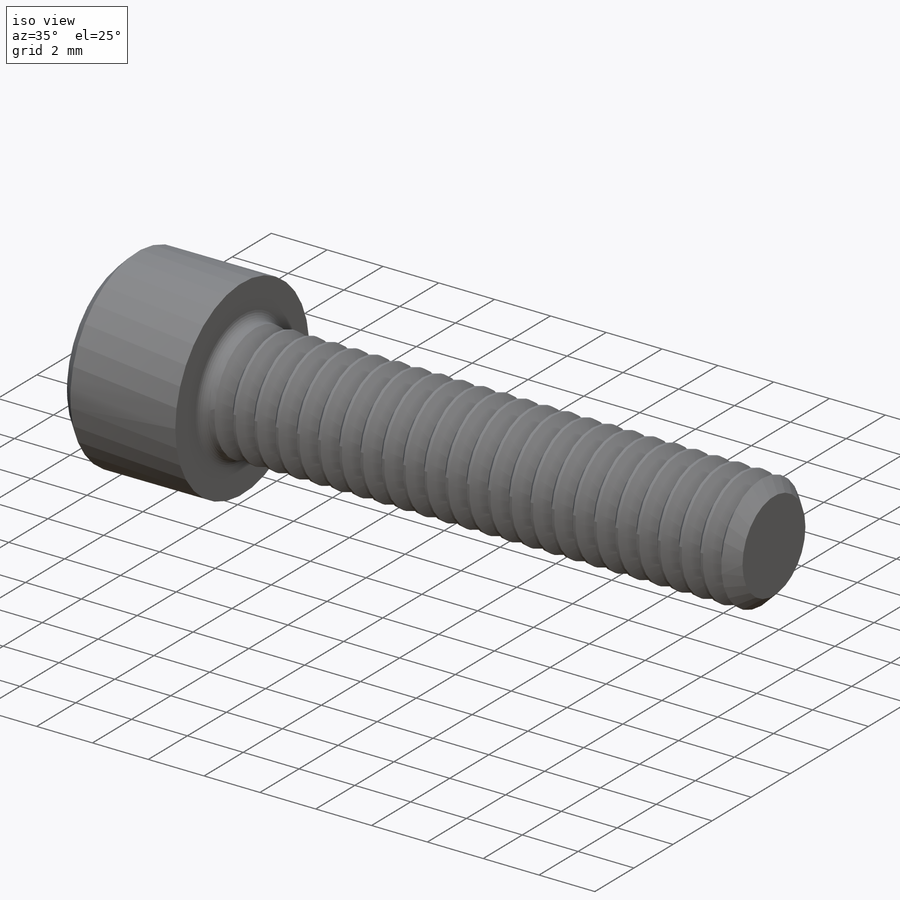
[diagram: iso view]
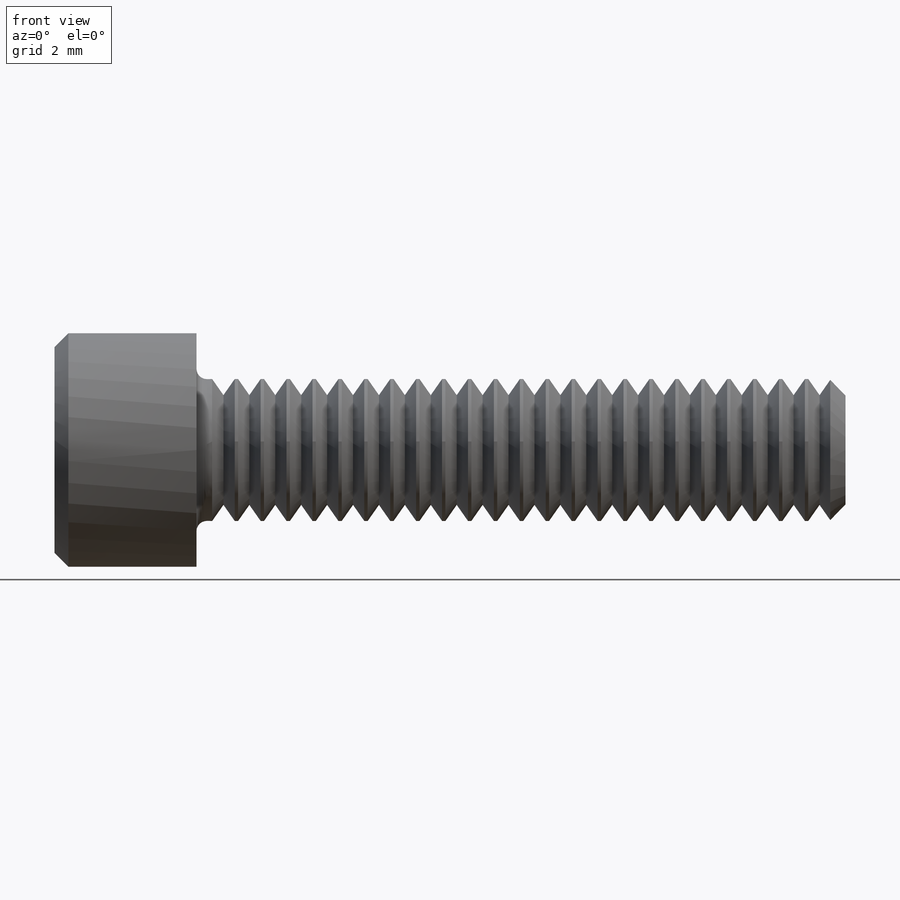
[diagram: front view]
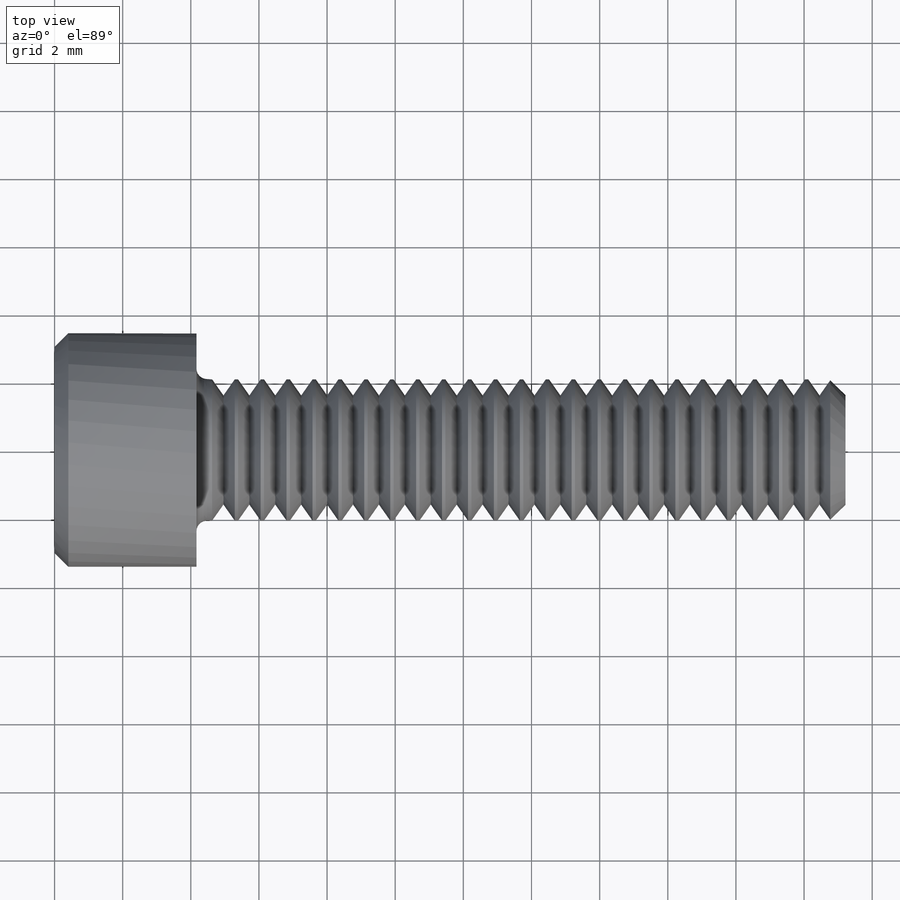
[diagram: top view]
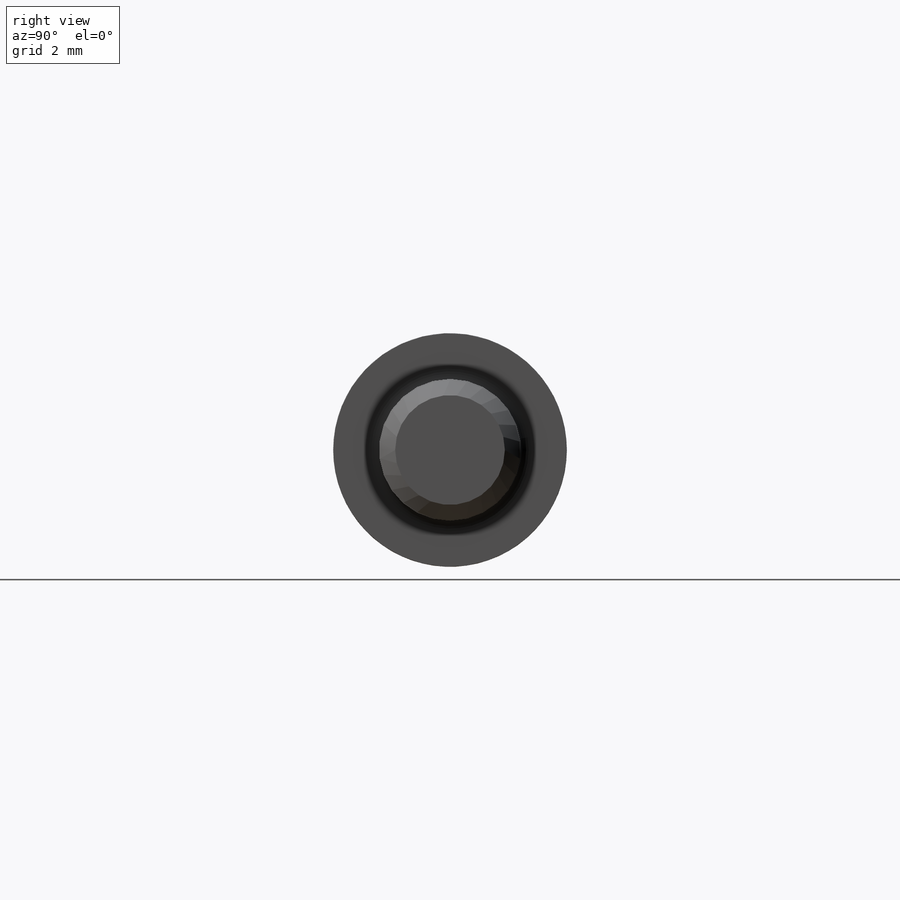
[diagram: right view]
SOLIDWORKS PART (.sldprt)
format: sldprt  version: not decoded by parser v0  size: 970,240 bytes
history: native  units: mm
features: sketch x6, plane x3, pattern_circular x3, cut_revolve x2, material x1, revolve x1, thread x1, fillet x1, cut_extrude x1, hole x1, pattern_linear x1 (+8 scaffold rows collapsed)
feature tree (29):
  scaffold x8  (default folders/planes/origin — collapsed)
  material  "Material <not specified>"
  plane  "Plane1"
  plane  "Plane2"
  plane  "Plane3"
  sketch  "BodySke"  dims[c1.Head_fillet_rad=1.016mm c1.D1=19.05mm c1.Diameter=25.4mm c1.D3=50.8mm c1.D4=22.225mm c2.D4=45.0deg c2.D5=22.225mm c2.Head_ht=4.1656mm c2.Length=19.05mm c2.D8=9.525mm c3.D8=45.0deg c3.D1=9.525mm c4.D8=9.525mm c5.D8=45.0deg c5.D1=73.025mm c6.D1=45.0deg c7.D1=9.525mm c8.D1=45.0deg c8.D4=22.225mm c9.D4=45.0deg c9.Thread_min=12.7mm c10.D4=9.525mm c10.Body_ch_ang=45.0deg c10.D8=22.225mm c11.D8=45.0deg c11.D5=22.225mm c12.D5=45.0deg c13.D5=~4.490128mm c14.D5=45.0deg c14.Head_dia=50.8mm c15.D5=~8.980256mm c15.Head_ch_ang=45.0deg c15.Head_side_ht=3.7592mm c15.D9=19.05mm c15.Diameter=4.1656mm c15.Head_dia=6.858mm c15.Minor_dia=~3.22072mm c15.Advance=~0.79248mm c15.Thread_nom=19.05mm c15.Thread_lim=~74.083342mm c15.Thread_length=38.1mm]
  revolve  "Base-Revolve"  [1 undecoded]
  thread  "ThreadCosmetic"  Diameter=18.25752mm Thread_length=18.25752mm Thread_minor=3.22072mm  [1 undecoded]
  fillet  "Fillet1"  Radius=0.3048mm
  sketch  "Sketch2"  dims[c1.D1=1.778mm c1.D2=25.4mm c2.D2=60.0deg c2.Wall_thickness=2.2098mm]
  cut_revolve  "Hex-PreBroach"  Angle=360deg
  sketch  "Sketch3"  dims[c1.D1=1.778mm c1.D2=1.778mm c1.Hex_size=3.556mm c1.D4=~14.664697mm c2.D4=120.0deg]
  cut_extrude  "Hex"  Depth=1.9558mm Key_eng=1.9558mm
  sketch  "Sketch4"  dims[c1.Spline_n_dim=3.81mm c1.Spline_m_dim=4.3942mm c1.D1=5.8547mm c2.D1=30.0deg c2.D2=5.8547mm c3.D2=60.0deg c3.Spline_p_dim=2.794mm c4.Spline_p_dim=0.9144mm c4.D3=0.4572mm c4.Key_eng=1.9558mm]
  pattern_circular  "CirPattern1"  Count=6 Angle=60deg Num_teeth=6
  sketch  "Sketch5"  dims[Drilled_hole_dia=1.1811mm Drilled_hole_loc=1.524mm]
  hole  "Hole"  [1 undecoded]
  pattern_circular  "Drilled-4"  Count=2 Angle=60deg
  pattern_circular  "Drilled-6"  Count=3 Angle=60deg
  sketch  "ThdSchSke"  dims[c1.Thread_minor=~1.03886mm c1.Diameter=~1.413535mm c1.Start=~0.988134mm c1.D4=~4.446753mm c1.Vee=60.0deg c2.Thread_minor=~1.03886mm c2.Start=~2.540025mm c2.D1=~0.108159mm c2.D2=~0.108159mm c3.D1=~0.216319mm c3.SideAngle=55.0deg c3.D2=~0.216319mm c3.VeeAngle=70.0deg c3.Thread_minor=~3.22072mm c3.Overcut=5.207mm c3.Diameter=4.1656mm c3.D6=~8.326268mm c4.D1=~8.326268mm c5.D1=90.0deg c5.Start=~4.95808mm]
  cut_revolve  "ThreadSchematic"  Angle=360deg
  pattern_linear  "ThdSchPat"  Count1=24 Count2=1 Spacing1=0.76073mm Spacing2=50mm Num_threads=24 Advance=0.76073mm
decode coverage: 15 of 17 modeling features carry decoded parameters
note: ~ marks probable driven/reference dimensions
note: 3 parameter values undecoded
note: suppression state not decoded; provenance and decode notes live in map.json
